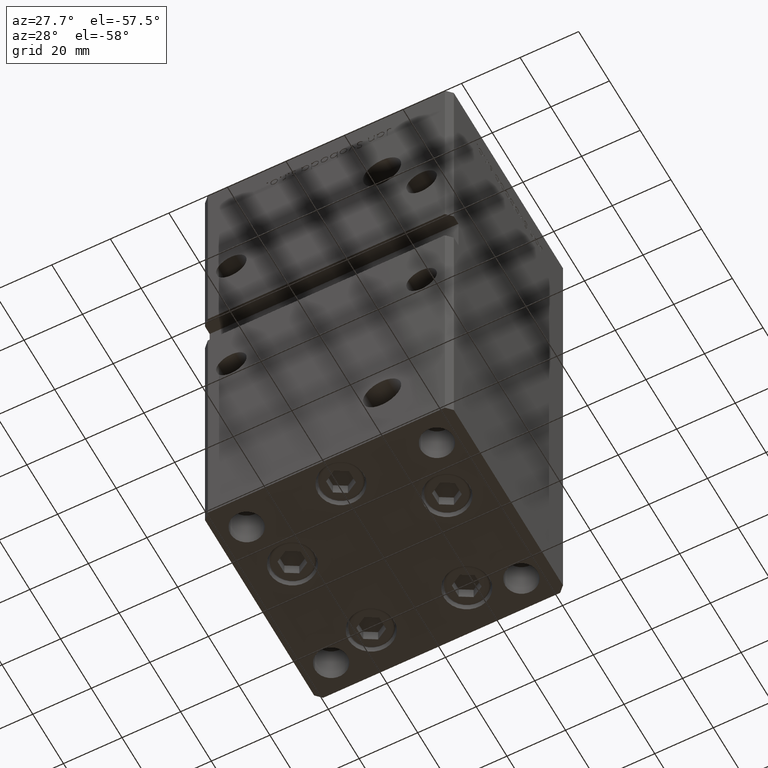
[diagram: clean part render]
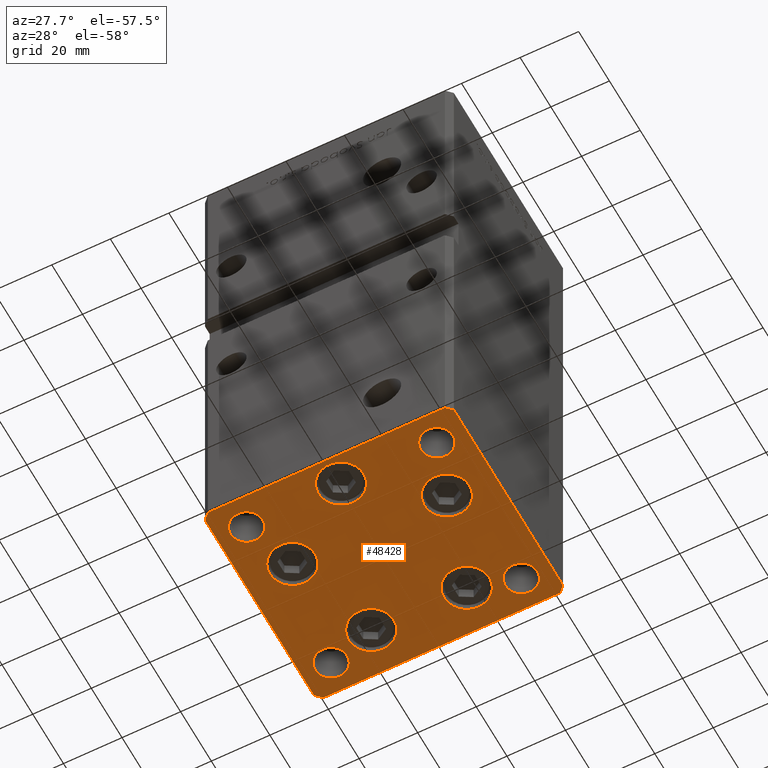
[diagram: same view with one face highlighted and labeled with its STEP entity id]
A machine part, auxiliary view. The second image highlights one B-rep face of the part: STEP entity #48428.
In plain terms, the highlighted planar face has unit normal (0, 0, -1).
Its self-contained STEP definition (entity closure, byte-faithful):
#649 = DIRECTION ( 'NONE',  ( -1.000000000000000000, -3.426614273534436165E-16, 0.000000000000000000 ) ) ;
#895 = VERTEX_POINT ( 'NONE', #38173 ) ;
#902 = EDGE_LOOP ( 'NONE', ( #45887, #2938 ) ) ;
#1392 = VERTEX_POINT ( 'NONE', #4714 ) ;
#1822 = FACE_BOUND ( 'NONE', #44537, .T. ) ;
#1959 = CARTESIAN_POINT ( 'NONE',  ( 32.50000000000000000, 27.49999999999999645, 0.000000000000000000 ) ) ;
#2034 = EDGE_CURVE ( 'NONE', #33669, #29872, #8916, .T. ) ;
#2472 = DIRECTION ( 'NONE',  ( 0.000000000000000000, -0.000000000000000000, -1.000000000000000000 ) ) ;
#2741 = ORIENTED_EDGE ( 'NONE', *, *, #14615, .T. ) ;
#2742 = LINE ( 'NONE', #19947, #28873 ) ;
#2938 = ORIENTED_EDGE ( 'NONE', *, *, #52006, .F. ) ;
#3235 = AXIS2_PLACEMENT_3D ( 'NONE', #42061, #43586, #51933 ) ;
#3317 = EDGE_LOOP ( 'NONE', ( #5661, #41539 ) ) ;
#3508 = CARTESIAN_POINT ( 'NONE',  ( -16.32291334290543006, 22.74999999999999645, 0.000000000000000000 ) ) ;
#3531 = CARTESIAN_POINT ( 'NONE',  ( -42.50000000000000711, 35.49999999999997158, 0.000000000000000000 ) ) ;
#3922 = AXIS2_PLACEMENT_3D ( 'NONE', #3508, #20645, #42140 ) ;
#4025 = CIRCLE ( 'NONE', #10772, 7.750000000000000000 ) ;
#4137 = AXIS2_PLACEMENT_3D ( 'NONE', #20085, #19567, #48350 ) ;
#4152 = VERTEX_POINT ( 'NONE', #17387 ) ;
#4544 = EDGE_CURVE ( 'NONE', #5390, #42123, #25669, .T. ) ;
#4555 = VECTOR ( 'NONE', #52504, 1000.000000000000000 ) ;
#4625 = CARTESIAN_POINT ( 'NONE',  ( 32.50000000000000000, -27.49999999999999645, 0.000000000000000000 ) ) ;
#4714 = CARTESIAN_POINT ( 'NONE',  ( 27.00000000000000355, 27.49999999999999645, 0.000000000000000000 ) ) ;
#4782 = VERTEX_POINT ( 'NONE', #50088 ) ;
#4807 = PLANE ( 'NONE',  #8365 ) ;
#4877 = CARTESIAN_POINT ( 'NONE',  ( 3.429011037612589276E-15, -28.00000000000000000, 0.000000000000000000 ) ) ;
#5288 = CARTESIAN_POINT ( 'NONE',  ( -40.50000000000000711, 37.49999999999997868, 0.000000000000000000 ) ) ;
#5291 = DIRECTION ( 'NONE',  ( 1.000000000000000000, 0.000000000000000000, 0.000000000000000000 ) ) ;
#5340 = FACE_OUTER_BOUND ( 'NONE', #20544, .T. ) ;
#5390 = VERTEX_POINT ( 'NONE', #36939 ) ;
#5412 = EDGE_CURVE ( 'NONE', #13397, #46697, #12430, .T. ) ;
#5612 = CARTESIAN_POINT ( 'NONE',  ( 40.50000000000000000, -37.50000000000000711, 0.000000000000000000 ) ) ;
#5661 = ORIENTED_EDGE ( 'NONE', *, *, #49438, .T. ) ;
#5733 = DIRECTION ( 'NONE',  ( -0.000000000000000000, 0.000000000000000000, 1.000000000000000000 ) ) ;
#5757 = VERTEX_POINT ( 'NONE', #18566 ) ;
#5782 = VERTEX_POINT ( 'NONE', #24392 ) ;
#5987 = CARTESIAN_POINT ( 'NONE',  ( -40.49999999999999289, -37.50000000000002132, 0.000000000000000000 ) ) ;
#6657 = VERTEX_POINT ( 'NONE', #46047 ) ;
#7039 = CARTESIAN_POINT ( 'NONE',  ( -27.00000000000000355, -27.49999999999999645, 0.000000000000000000 ) ) ;
#7303 = AXIS2_PLACEMENT_3D ( 'NONE', #13786, #46096, #26699 ) ;
#7428 = EDGE_CURVE ( 'NONE', #19399, #13118, #4025, .T. ) ;
#7563 = AXIS2_PLACEMENT_3D ( 'NONE', #22010, #9100, #49743 ) ;
#7592 = AXIS2_PLACEMENT_3D ( 'NONE', #47952, #19166, #48219 ) ;
#7899 = ORIENTED_EDGE ( 'NONE', *, *, #16651, .T. ) ;
#8365 = AXIS2_PLACEMENT_3D ( 'NONE', #26045, #25254, #42704 ) ;
#8458 = EDGE_CURVE ( 'NONE', #895, #4152, #13882, .T. ) ;
#8554 = DIRECTION ( 'NONE',  ( 1.000000000000000000, 0.000000000000000000, 0.000000000000000000 ) ) ;
#8818 = ORIENTED_EDGE ( 'NONE', *, *, #16060, .T. ) ;
#8897 = CARTESIAN_POINT ( 'NONE',  ( 32.50000000000000000, 27.49999999999999645, 0.000000000000000000 ) ) ;
#8916 = CIRCLE ( 'NONE', #46719, 5.499999999999998224 ) ;
#9100 = DIRECTION ( 'NONE',  ( 0.000000000000000000, -0.000000000000000000, -1.000000000000000000 ) ) ;
#9248 = CIRCLE ( 'NONE', #7563, 5.499999999999998224 ) ;
#9431 = DIRECTION ( 'NONE',  ( 0.000000000000000000, -0.000000000000000000, -1.000000000000000000 ) ) ;
#9500 = VERTEX_POINT ( 'NONE', #17080 ) ;
#9576 = DIRECTION ( 'NONE',  ( -0.000000000000000000, 0.000000000000000000, 1.000000000000000000 ) ) ;
#9683 = DIRECTION ( 'NONE',  ( 1.000000000000000000, 0.000000000000000000, 0.000000000000000000 ) ) ;
#9721 = AXIS2_PLACEMENT_3D ( 'NONE', #4877, #33387, #34176 ) ;
#9995 = EDGE_CURVE ( 'NONE', #38363, #38843, #38336, .T. ) ;
#10041 = CARTESIAN_POINT ( 'NONE',  ( -40.50000000000000711, 37.49999999999997868, 0.000000000000000000 ) ) ;
#10109 = EDGE_CURVE ( 'NONE', #19528, #46863, #23977, .T. ) ;
#10132 = CARTESIAN_POINT ( 'NONE',  ( -32.50000000000000000, -27.49999999999999645, 0.000000000000000000 ) ) ;
#10734 = EDGE_LOOP ( 'NONE', ( #26097, #23659 ) ) ;
#10772 = AXIS2_PLACEMENT_3D ( 'NONE', #36892, #12418, #28841 ) ;
#11002 = CARTESIAN_POINT ( 'NONE',  ( 38.00000000000000000, -27.49999999999999645, 0.000000000000000000 ) ) ;
#11024 = AXIS2_PLACEMENT_3D ( 'NONE', #1959, #5733, #42849 ) ;
#11195 = CARTESIAN_POINT ( 'NONE',  ( -18.64865316429776954, -9.333333333333335702, 0.000000000000000000 ) ) ;
#11332 = LINE ( 'NONE', #36069, #4555 ) ;
#11583 = ORIENTED_EDGE ( 'NONE', *, *, #53076, .T. ) ;
#11725 = EDGE_LOOP ( 'NONE', ( #42162, #8818 ) ) ;
#12418 = DIRECTION ( 'NONE',  ( 0.000000000000000000, -0.000000000000000000, -1.000000000000000000 ) ) ;
#12430 = CIRCLE ( 'NONE', #7303, 5.499999999999998224 ) ;
#13118 = VERTEX_POINT ( 'NONE', #11195 ) ;
#13283 = VECTOR ( 'NONE', #649, 1000.000000000000000 ) ;
#13397 = VERTEX_POINT ( 'NONE', #22181 ) ;
#13569 = AXIS2_PLACEMENT_3D ( 'NONE', #21017, #33384, #32321 ) ;
#13715 = CARTESIAN_POINT ( 'NONE',  ( -26.39865316429776954, -9.333333333333337478, 0.000000000000000000 ) ) ;
#13786 = CARTESIAN_POINT ( 'NONE',  ( -32.50000000000000000, 27.50000000000000355, 0.000000000000000000 ) ) ;
#13882 = LINE ( 'NONE', #18453, #19390 ) ;
#13920 = FACE_BOUND ( 'NONE', #3317, .T. ) ;
#14176 = FACE_BOUND ( 'NONE', #902, .T. ) ;
#14615 = EDGE_CURVE ( 'NONE', #13118, #19399, #28140, .T. ) ;
#14945 = VERTEX_POINT ( 'NONE', #34021 ) ;
#15090 = EDGE_LOOP ( 'NONE', ( #7899, #11583 ) ) ;
#15110 = CARTESIAN_POINT ( 'NONE',  ( 8.572913342905422951, 22.75000000000000000, 0.000000000000000000 ) ) ;
#15356 = AXIS2_PLACEMENT_3D ( 'NONE', #8897, #21288, #37681 ) ;
#15385 = EDGE_CURVE ( 'NONE', #29872, #33669, #18678, .T. ) ;
#15985 = VECTOR ( 'NONE', #39564, 1000.000000000000000 ) ;
#16060 = EDGE_CURVE ( 'NONE', #38843, #38363, #50537, .T. ) ;
#16644 = DIRECTION ( 'NONE',  ( 1.000000000000000000, 0.000000000000000000, 0.000000000000000000 ) ) ;
#16651 = EDGE_CURVE ( 'NONE', #5757, #9500, #30781, .T. ) ;
#17080 = CARTESIAN_POINT ( 'NONE',  ( 34.14865316429776954, -9.333333333333328596, 0.000000000000000000 ) ) ;
#17184 = CARTESIAN_POINT ( 'NONE',  ( 26.39865316429776954, -9.333333333333330373, 0.000000000000000000 ) ) ;
#17387 = CARTESIAN_POINT ( 'NONE',  ( 42.49999999999992895, 35.50000000000000000, 0.000000000000000000 ) ) ;
#18226 = FACE_BOUND ( 'NONE', #43601, .T. ) ;
#18281 = CIRCLE ( 'NONE', #20018, 5.499999999999998224 ) ;
#18384 = LINE ( 'NONE', #10041, #50710 ) ;
#18453 = CARTESIAN_POINT ( 'NONE',  ( 42.50000000000000711, -35.50000000000000000, 0.000000000000000000 ) ) ;
#18478 = CARTESIAN_POINT ( 'NONE',  ( -16.32291334290543006, 22.74999999999999645, 0.000000000000000000 ) ) ;
#18566 = CARTESIAN_POINT ( 'NONE',  ( 18.64865316429776954, -9.333333333333330373, 0.000000000000000000 ) ) ;
#18678 = CIRCLE ( 'NONE', #13569, 5.499999999999998224 ) ;
#19148 = DIRECTION ( 'NONE',  ( -0.7071067811865474617, 0.7071067811865474617, 0.000000000000000000 ) ) ;
#19166 = DIRECTION ( 'NONE',  ( 0.000000000000000000, -0.000000000000000000, -1.000000000000000000 ) ) ;
#19277 = CARTESIAN_POINT ( 'NONE',  ( -42.50000000000000000, -35.50000000000000711, 0.000000000000000000 ) ) ;
#19390 = VECTOR ( 'NONE', #42940, 1000.000000000000000 ) ;
#19399 = VERTEX_POINT ( 'NONE', #27058 ) ;
#19528 = VERTEX_POINT ( 'NONE', #33993 ) ;
#19567 = DIRECTION ( 'NONE',  ( 0.000000000000000000, -0.000000000000000000, -1.000000000000000000 ) ) ;
#19947 = CARTESIAN_POINT ( 'NONE',  ( 42.49999999999992895, 35.50000000000000000, 0.000000000000000000 ) ) ;
#20018 = AXIS2_PLACEMENT_3D ( 'NONE', #37289, #9576, #5291 ) ;
#20085 = CARTESIAN_POINT ( 'NONE',  ( 16.32291334290542295, 22.75000000000000000, 0.000000000000000000 ) ) ;
#20544 = EDGE_LOOP ( 'NONE', ( #42625, #44833, #50722, #24698, #33033, #50835, #50183, #40572 ) ) ;
#20645 = DIRECTION ( 'NONE',  ( 0.000000000000000000, -0.000000000000000000, -1.000000000000000000 ) ) ;
#21017 = CARTESIAN_POINT ( 'NONE',  ( -32.50000000000000000, -27.49999999999999645, 0.000000000000000000 ) ) ;
#21288 = DIRECTION ( 'NONE',  ( -0.000000000000000000, 0.000000000000000000, 1.000000000000000000 ) ) ;
#21970 = AXIS2_PLACEMENT_3D ( 'NONE', #4625, #49828, #52794 ) ;
#22010 = CARTESIAN_POINT ( 'NONE',  ( 32.50000000000000000, -27.49999999999999645, 0.000000000000000000 ) ) ;
#22181 = CARTESIAN_POINT ( 'NONE',  ( -27.00000000000000355, 27.50000000000000355, 0.000000000000000000 ) ) ;
#22280 = FACE_BOUND ( 'NONE', #52826, .T. ) ;
#22780 = DIRECTION ( 'NONE',  ( 0.000000000000000000, -0.000000000000000000, -1.000000000000000000 ) ) ;
#23056 = DIRECTION ( 'NONE',  ( 0.000000000000000000, -0.000000000000000000, -1.000000000000000000 ) ) ;
#23187 = CARTESIAN_POINT ( 'NONE',  ( -38.00000000000000000, -27.49999999999999645, 0.000000000000000000 ) ) ;
#23659 = ORIENTED_EDGE ( 'NONE', *, *, #15385, .T. ) ;
#23977 = LINE ( 'NONE', #3531, #15985 ) ;
#24213 = VECTOR ( 'NONE', #48666, 1000.000000000000000 ) ;
#24392 = CARTESIAN_POINT ( 'NONE',  ( -24.07291334290543006, 22.74999999999999645, 0.000000000000000000 ) ) ;
#24698 = ORIENTED_EDGE ( 'NONE', *, *, #8458, .T. ) ;
#25254 = DIRECTION ( 'NONE',  ( -0.000000000000000000, 0.000000000000000000, 1.000000000000000000 ) ) ;
#25266 = DIRECTION ( 'NONE',  ( 0.7071067811865474617, 0.7071067811865474617, 0.000000000000000000 ) ) ;
#25577 = CIRCLE ( 'NONE', #3235, 7.750000000000000000 ) ;
#25669 = LINE ( 'NONE', #42068, #13283 ) ;
#25733 = CARTESIAN_POINT ( 'NONE',  ( 7.750000000000003553, -28.00000000000000000, 0.000000000000000000 ) ) ;
#26045 = CARTESIAN_POINT ( 'NONE',  ( 0.000000000000000000, 0.000000000000000000, 0.000000000000000000 ) ) ;
#26097 = ORIENTED_EDGE ( 'NONE', *, *, #2034, .T. ) ;
#26238 = EDGE_CURVE ( 'NONE', #42123, #19528, #18384, .T. ) ;
#26305 = FACE_BOUND ( 'NONE', #11725, .T. ) ;
#26699 = DIRECTION ( 'NONE',  ( 1.000000000000000000, 0.000000000000000000, 0.000000000000000000 ) ) ;
#27033 = EDGE_CURVE ( 'NONE', #28596, #895, #41928, .T. ) ;
#27058 = CARTESIAN_POINT ( 'NONE',  ( -34.14865316429776954, -9.333333333333337478, 0.000000000000000000 ) ) ;
#27184 = AXIS2_PLACEMENT_3D ( 'NONE', #31249, #2472, #8554 ) ;
#27262 = ORIENTED_EDGE ( 'NONE', *, *, #5412, .F. ) ;
#28140 = CIRCLE ( 'NONE', #39295, 7.750000000000000000 ) ;
#28471 = CARTESIAN_POINT ( 'NONE',  ( -38.00000000000000000, 27.50000000000000355, 0.000000000000000000 ) ) ;
#28596 = VERTEX_POINT ( 'NONE', #34783 ) ;
#28771 = DIRECTION ( 'NONE',  ( 0.000000000000000000, -0.000000000000000000, -1.000000000000000000 ) ) ;
#28841 = DIRECTION ( 'NONE',  ( 1.000000000000000000, 0.000000000000000000, 0.000000000000000000 ) ) ;
#28873 = VECTOR ( 'NONE', #19148, 1000.000000000000114 ) ;
#28995 = AXIS2_PLACEMENT_3D ( 'NONE', #18478, #23056, #51574 ) ;
#29405 = VERTEX_POINT ( 'NONE', #11002 ) ;
#29872 = VERTEX_POINT ( 'NONE', #23187 ) ;
#30246 = EDGE_CURVE ( 'NONE', #48195, #28596, #35477, .T. ) ;
#30781 = CIRCLE ( 'NONE', #7592, 7.750000000000000000 ) ;
#31220 = CARTESIAN_POINT ( 'NONE',  ( 38.00000000000000000, 27.49999999999999645, 0.000000000000000000 ) ) ;
#31249 = CARTESIAN_POINT ( 'NONE',  ( 16.32291334290542295, 22.75000000000000000, 0.000000000000000000 ) ) ;
#32321 = DIRECTION ( 'NONE',  ( 1.000000000000000000, 0.000000000000000000, 0.000000000000000000 ) ) ;
#33033 = ORIENTED_EDGE ( 'NONE', *, *, #44080, .T. ) ;
#33035 = CARTESIAN_POINT ( 'NONE',  ( -40.49999999999999289, -37.50000000000002132, 0.000000000000000000 ) ) ;
#33384 = DIRECTION ( 'NONE',  ( 0.000000000000000000, -0.000000000000000000, -1.000000000000000000 ) ) ;
#33387 = DIRECTION ( 'NONE',  ( 0.000000000000000000, -0.000000000000000000, -1.000000000000000000 ) ) ;
#33573 = VECTOR ( 'NONE', #25266, 1000.000000000000114 ) ;
#33669 = VERTEX_POINT ( 'NONE', #7039 ) ;
#33804 = EDGE_CURVE ( 'NONE', #46863, #48195, #11332, .T. ) ;
#33993 = CARTESIAN_POINT ( 'NONE',  ( -42.50000000000000711, 35.49999999999997158, 0.000000000000000000 ) ) ;
#34021 = CARTESIAN_POINT ( 'NONE',  ( 27.00000000000000355, -27.49999999999999645, 0.000000000000000000 ) ) ;
#34176 = DIRECTION ( 'NONE',  ( 1.000000000000000000, 0.000000000000000000, 0.000000000000000000 ) ) ;
#34373 = FACE_BOUND ( 'NONE', #15090, .T. ) ;
#34783 = CARTESIAN_POINT ( 'NONE',  ( 40.50000000000000000, -37.50000000000000711, 0.000000000000000000 ) ) ;
#35477 = LINE ( 'NONE', #33035, #24213 ) ;
#36069 = CARTESIAN_POINT ( 'NONE',  ( -42.50000000000000000, -35.50000000000000711, 0.000000000000000000 ) ) ;
#36682 = CIRCLE ( 'NONE', #15356, 5.499999999999998224 ) ;
#36892 = CARTESIAN_POINT ( 'NONE',  ( -26.39865316429776954, -9.333333333333337478, 0.000000000000000000 ) ) ;
#36939 = CARTESIAN_POINT ( 'NONE',  ( 40.49999999999991473, 37.50000000000000711, 0.000000000000000000 ) ) ;
#37289 = CARTESIAN_POINT ( 'NONE',  ( -32.50000000000000000, 27.50000000000000355, 0.000000000000000000 ) ) ;
#37441 = EDGE_CURVE ( 'NONE', #46697, #13397, #18281, .T. ) ;
#37681 = DIRECTION ( 'NONE',  ( 1.000000000000000000, 0.000000000000000000, 0.000000000000000000 ) ) ;
#38173 = CARTESIAN_POINT ( 'NONE',  ( 42.50000000000000711, -35.50000000000000000, 0.000000000000000000 ) ) ;
#38336 = CIRCLE ( 'NONE', #27184, 7.750000000000003553 ) ;
#38363 = VERTEX_POINT ( 'NONE', #15110 ) ;
#38398 = FACE_BOUND ( 'NONE', #47025, .T. ) ;
#38538 = EDGE_CURVE ( 'NONE', #6657, #42050, #52708, .T. ) ;
#38843 = VERTEX_POINT ( 'NONE', #41925 ) ;
#39175 = DIRECTION ( 'NONE',  ( 1.000000000000000000, 0.000000000000000000, 0.000000000000000000 ) ) ;
#39295 = AXIS2_PLACEMENT_3D ( 'NONE', #13715, #9431, #9683 ) ;
#39564 = DIRECTION ( 'NONE',  ( 9.773090005503140331E-17, -1.000000000000000000, 0.000000000000000000 ) ) ;
#40572 = ORIENTED_EDGE ( 'NONE', *, *, #10109, .T. ) ;
#40996 = CIRCLE ( 'NONE', #28995, 7.750000000000000000 ) ;
#41030 = CIRCLE ( 'NONE', #46210, 7.750000000000000000 ) ;
#41539 = ORIENTED_EDGE ( 'NONE', *, *, #42733, .T. ) ;
#41696 = CIRCLE ( 'NONE', #21970, 5.499999999999998224 ) ;
#41925 = CARTESIAN_POINT ( 'NONE',  ( 24.07291334290542650, 22.75000000000000000, 0.000000000000000000 ) ) ;
#41928 = LINE ( 'NONE', #5612, #33573 ) ;
#42050 = VERTEX_POINT ( 'NONE', #25733 ) ;
#42061 = CARTESIAN_POINT ( 'NONE',  ( 3.429011037612589276E-15, -28.00000000000000000, 0.000000000000000000 ) ) ;
#42068 = CARTESIAN_POINT ( 'NONE',  ( 40.49999999999991473, 37.50000000000000711, 0.000000000000000000 ) ) ;
#42123 = VERTEX_POINT ( 'NONE', #5288 ) ;
#42140 = DIRECTION ( 'NONE',  ( 1.000000000000000000, 0.000000000000000000, 0.000000000000000000 ) ) ;
#42162 = ORIENTED_EDGE ( 'NONE', *, *, #9995, .T. ) ;
#42594 = DIRECTION ( 'NONE',  ( -0.7071067811865463515, -0.7071067811865487940, 0.000000000000000000 ) ) ;
#42625 = ORIENTED_EDGE ( 'NONE', *, *, #33804, .T. ) ;
#42704 = DIRECTION ( 'NONE',  ( 1.000000000000000000, 0.000000000000000000, 0.000000000000000000 ) ) ;
#42733 = EDGE_CURVE ( 'NONE', #14945, #29405, #41696, .T. ) ;
#42849 = DIRECTION ( 'NONE',  ( 1.000000000000000000, 0.000000000000000000, 0.000000000000000000 ) ) ;
#42940 = DIRECTION ( 'NONE',  ( -1.172770800660376741E-15, 1.000000000000000000, 0.000000000000000000 ) ) ;
#42975 = EDGE_CURVE ( 'NONE', #4782, #5782, #46856, .T. ) ;
#43177 = ORIENTED_EDGE ( 'NONE', *, *, #37441, .F. ) ;
#43416 = ORIENTED_EDGE ( 'NONE', *, *, #42975, .T. ) ;
#43586 = DIRECTION ( 'NONE',  ( 0.000000000000000000, -0.000000000000000000, -1.000000000000000000 ) ) ;
#43601 = EDGE_LOOP ( 'NONE', ( #27262, #43177 ) ) ;
#44080 = EDGE_CURVE ( 'NONE', #4152, #5390, #2742, .T. ) ;
#44537 = EDGE_LOOP ( 'NONE', ( #52845, #2741 ) ) ;
#44833 = ORIENTED_EDGE ( 'NONE', *, *, #30246, .T. ) ;
#45887 = ORIENTED_EDGE ( 'NONE', *, *, #50086, .F. ) ;
#46047 = CARTESIAN_POINT ( 'NONE',  ( -7.749999999999996447, -28.00000000000000000, 0.000000000000000000 ) ) ;
#46096 = DIRECTION ( 'NONE',  ( -0.000000000000000000, 0.000000000000000000, 1.000000000000000000 ) ) ;
#46210 = AXIS2_PLACEMENT_3D ( 'NONE', #17184, #28771, #16644 ) ;
#46697 = VERTEX_POINT ( 'NONE', #28471 ) ;
#46719 = AXIS2_PLACEMENT_3D ( 'NONE', #10132, #22780, #39175 ) ;
#46810 = ORIENTED_EDGE ( 'NONE', *, *, #52948, .T. ) ;
#46856 = CIRCLE ( 'NONE', #3922, 7.750000000000000000 ) ;
#46863 = VERTEX_POINT ( 'NONE', #19277 ) ;
#47025 = EDGE_LOOP ( 'NONE', ( #48244, #46810 ) ) ;
#47745 = EDGE_CURVE ( 'NONE', #5782, #4782, #40996, .T. ) ;
#47952 = CARTESIAN_POINT ( 'NONE',  ( 26.39865316429776954, -9.333333333333330373, 0.000000000000000000 ) ) ;
#48195 = VERTEX_POINT ( 'NONE', #5987 ) ;
#48219 = DIRECTION ( 'NONE',  ( 1.000000000000000000, 0.000000000000000000, 0.000000000000000000 ) ) ;
#48244 = ORIENTED_EDGE ( 'NONE', *, *, #38538, .T. ) ;
#48350 = DIRECTION ( 'NONE',  ( 1.000000000000000000, 0.000000000000000000, 0.000000000000000000 ) ) ;
#48428 = ADVANCED_FACE ( 'NONE', ( #22280, #26305, #34373, #38398, #1822, #14176, #13920, #18226, #5340, #51058 ), #4807, .T. ) ;
#48666 = DIRECTION ( 'NONE',  ( 1.000000000000000000, 1.713307136767217096E-16, 0.000000000000000000 ) ) ;
#49438 = EDGE_CURVE ( 'NONE', #29405, #14945, #9248, .T. ) ;
#49743 = DIRECTION ( 'NONE',  ( 1.000000000000000000, 0.000000000000000000, 0.000000000000000000 ) ) ;
#49828 = DIRECTION ( 'NONE',  ( 0.000000000000000000, -0.000000000000000000, -1.000000000000000000 ) ) ;
#50086 = EDGE_CURVE ( 'NONE', #52807, #1392, #50550, .T. ) ;
#50088 = CARTESIAN_POINT ( 'NONE',  ( -8.572913342905431833, 22.74999999999999645, 0.000000000000000000 ) ) ;
#50183 = ORIENTED_EDGE ( 'NONE', *, *, #26238, .T. ) ;
#50537 = CIRCLE ( 'NONE', #4137, 7.750000000000003553 ) ;
#50550 = CIRCLE ( 'NONE', #11024, 5.499999999999998224 ) ;
#50710 = VECTOR ( 'NONE', #42594, 1000.000000000000000 ) ;
#50722 = ORIENTED_EDGE ( 'NONE', *, *, #27033, .T. ) ;
#50835 = ORIENTED_EDGE ( 'NONE', *, *, #4544, .T. ) ;
#51058 = FACE_BOUND ( 'NONE', #10734, .T. ) ;
#51574 = DIRECTION ( 'NONE',  ( 1.000000000000000000, 0.000000000000000000, 0.000000000000000000 ) ) ;
#51933 = DIRECTION ( 'NONE',  ( 1.000000000000000000, 0.000000000000000000, 0.000000000000000000 ) ) ;
#52006 = EDGE_CURVE ( 'NONE', #1392, #52807, #36682, .T. ) ;
#52497 = ORIENTED_EDGE ( 'NONE', *, *, #47745, .T. ) ;
#52504 = DIRECTION ( 'NONE',  ( 0.7071067811865463515, -0.7071067811865487940, 0.000000000000000000 ) ) ;
#52708 = CIRCLE ( 'NONE', #9721, 7.750000000000000000 ) ;
#52794 = DIRECTION ( 'NONE',  ( 1.000000000000000000, 0.000000000000000000, 0.000000000000000000 ) ) ;
#52807 = VERTEX_POINT ( 'NONE', #31220 ) ;
#52826 = EDGE_LOOP ( 'NONE', ( #52497, #43416 ) ) ;
#52845 = ORIENTED_EDGE ( 'NONE', *, *, #7428, .T. ) ;
#52948 = EDGE_CURVE ( 'NONE', #42050, #6657, #25577, .T. ) ;
#53076 = EDGE_CURVE ( 'NONE', #9500, #5757, #41030, .T. ) ;